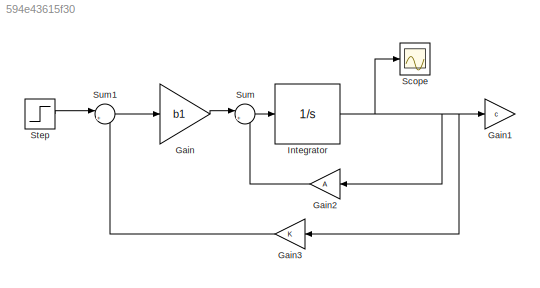
MODEL slx_594e43615f30
KIND model
CONFIG AbsTol = auto
CONFIG EnableMultiTasking = off
CONFIG FixedStep = auto
CONFIG MaxStep = auto
CONFIG MinStep = auto
CONFIG RelTol = 1e-3
CONFIG SampleTimeConstraint = Unconstrained
CONFIG SolverName = VariableStepAuto
CONFIG StartTime = 0.0
CONFIG StopTime = 10.0
BLOCK [Gain] Gain
  Gain = b1
BLOCK [Gain] Gain1
  Gain = c
  Multiplication = Matrix(K*u) (u vector)
BLOCK [Gain] Gain2
  Gain = A
  Multiplication = Matrix(K*u) (u vector)
  NameLocation = top
BLOCK [Gain] Gain3
  Gain = K
  Multiplication = Matrix(K*u) (u vector)
  NameLocation = top
BLOCK [Integrator] Integrator
  InitialCondition = [0;0;0]
BLOCK [Scope] Scope
  Floating = off
  NumInputPorts = 1
  ScopeSpecificationString = Simulink.scopes.TimeScopeBlockCfg('CurrentConfiguration', extmgr.ConfigurationSet(extmgr.Configuration('Core','General UI',true),extmgr.Configuration('Core','Source UI',true),extmgr.Configuration('Sources','WiredSimulink',true),extmgr.Configuration('Visuals','Time Domain',true,'SerializedDisplays',{struct('MinYLimReal','-0.39718','MaxYLimReal','3.57464','YLabelReal','','MinYLimMag','0.00000','MaxY...<+1389ch>
BLOCK [Step] Step
  SampleTime = 0
BLOCK [Sum] Sum
  Inputs = |++
BLOCK [Sum] Sum1
  Inputs = |+-
LINE Gain2:1 -> Sum:2
LINE Gain3:1 -> Sum1:2
LINE Gain:1 -> Sum:1
NET Integrator:1 -> Gain1:1, Gain2:1, Gain3:1, Scope:1
LINE Step:1 -> Sum1:1
LINE Sum1:1 -> Gain:1
LINE Sum:1 -> Integrator:1
note: NET lines group one-source signal fan-out (src -> all destinations, sorted); 1:1 wires keep LINE
